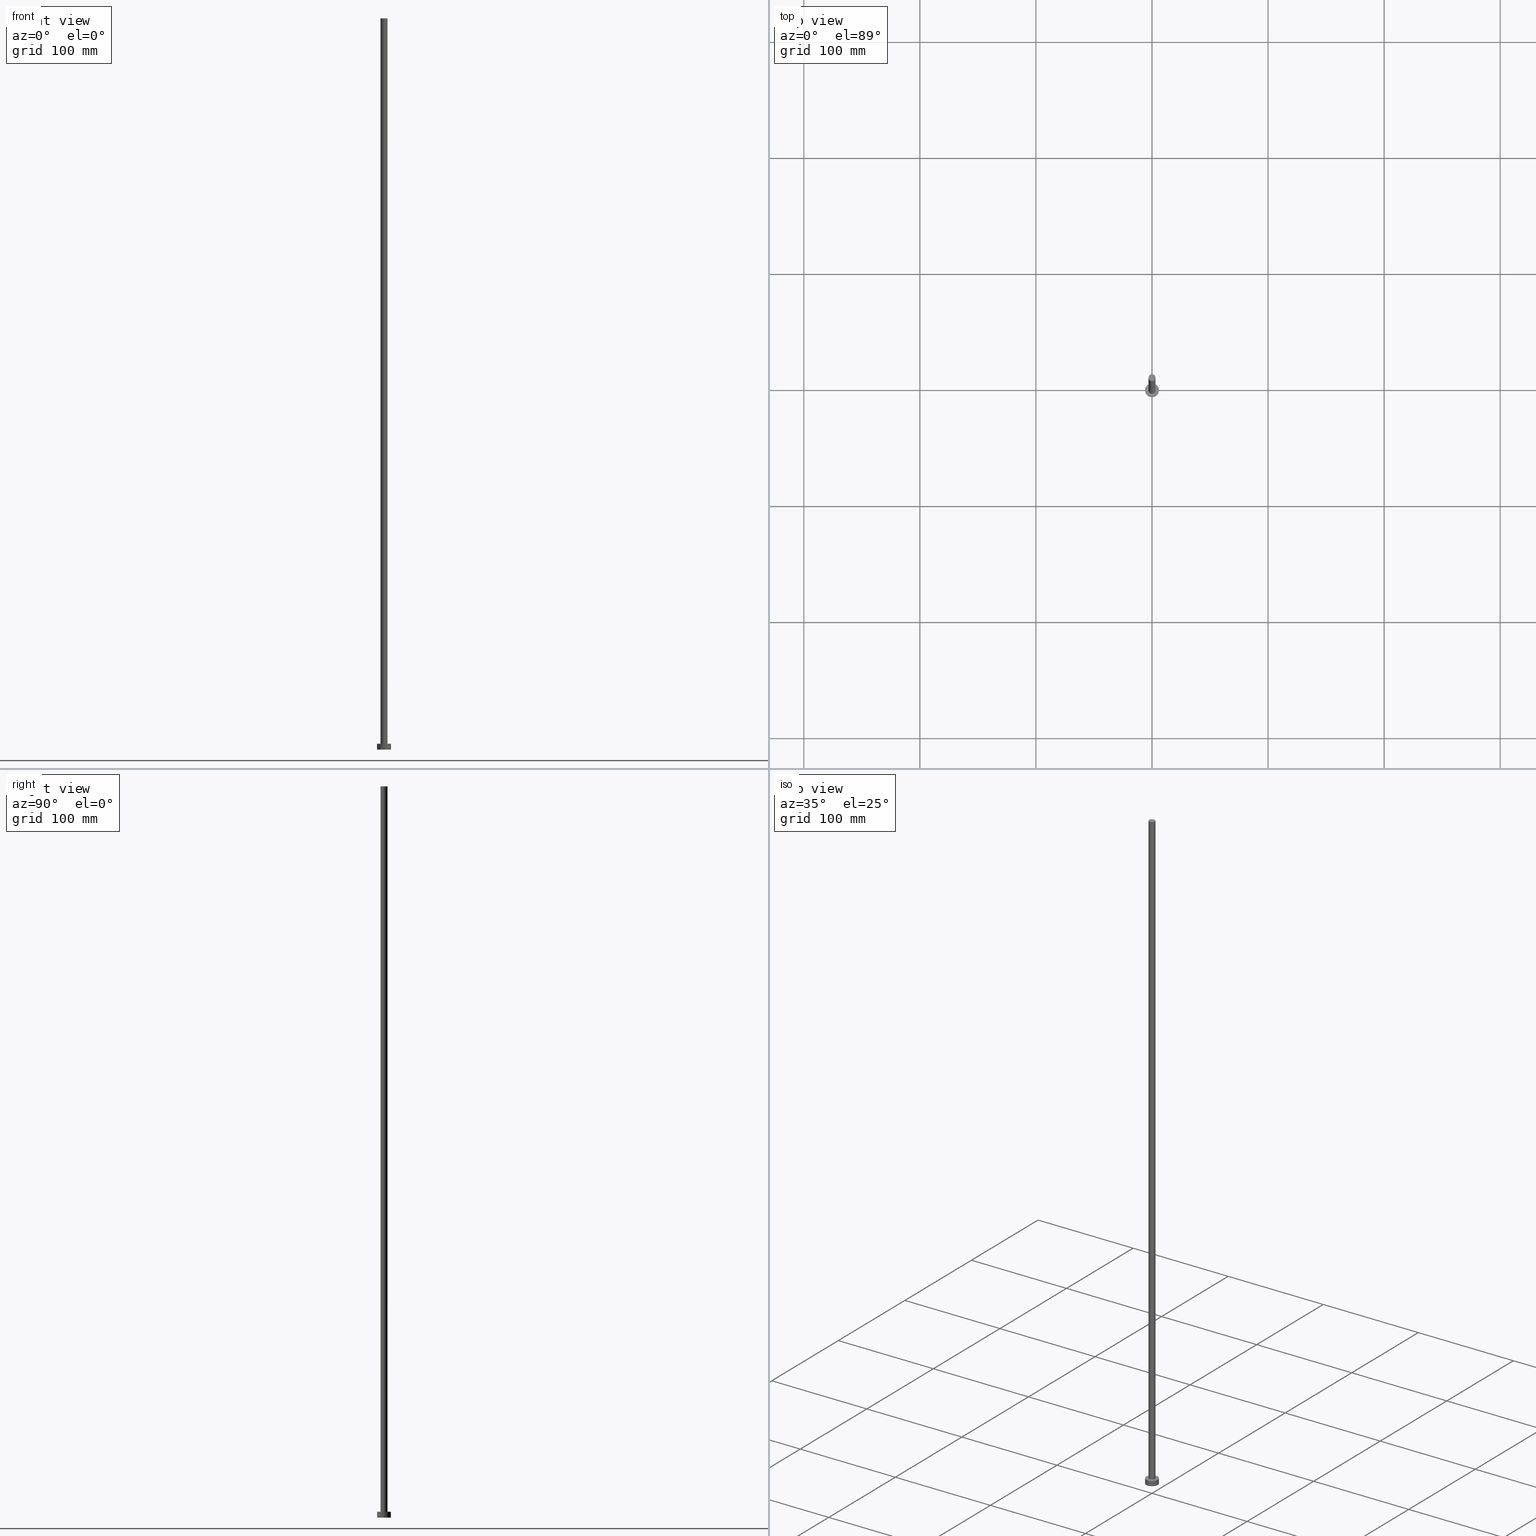
[diagram: canonical four-view strip — front | top / right | iso, engineering-drawing reading convention]
A machine part, canonical four-view strip (front | top / right | iso — engineering-drawing reading convention). The complete STEP part file that produces these views, byte-faithful:
ISO-10303-21;
HEADER;
FILE_DESCRIPTION (( 'STEP AP203' ),
    '1' );
FILE_NAME ('982e.STEP',
    '2026-02-06T12:40:20',
    ( '' ),
    ( '' ),
    'SwSTEP 2.0',
    'SolidWorks 2019',
    '' );
FILE_SCHEMA (( 'CONFIG_CONTROL_DESIGN' ));
ENDSEC;

DATA;
#1 = ORIENTED_EDGE ( 'NONE', *, *, #173, .T. ) ;
#2 = ORIENTED_EDGE ( 'NONE', *, *, #126, .T. ) ;
#3 = DIRECTION ( 'NONE',  ( -0.000000000000000000, -0.000000000000000000, -1.000000000000000000 ) ) ;
#4 = AXIS2_PLACEMENT_3D ( 'NONE', #149, #222, #133 ) ;
#5 = ADVANCED_BREP_SHAPE_REPRESENTATION ( '982e', ( #16, #46 ), #160 ) ;
#6 = APPLICATION_CONTEXT ( 'configuration controlled 3d designs of mechanical parts and assemblies' ) ;
#7 = CC_DESIGN_DATE_AND_TIME_ASSIGNMENT ( #198, #159, ( #52 ) ) ;
#8 = PERSON_AND_ORGANIZATION_ROLE ( 'design_owner' ) ;
#9 = VECTOR ( 'NONE', #183, 1000.000000000000000 ) ;
#10 = SECURITY_CLASSIFICATION_LEVEL ( 'unclassified' ) ;
#11 = PERSON_AND_ORGANIZATION_ROLE ( 'creator' ) ;
#12 = FACE_OUTER_BOUND ( 'NONE', #119, .T. ) ;
#13 = EDGE_CURVE ( 'NONE', #123, #151, #24, .T. ) ;
#14 = LOCAL_TIME ( 13, 40, 20.00000000000000000, #71 ) ;
#15 = DIRECTION ( 'NONE',  ( 0.000000000000000000, 0.000000000000000000, 1.000000000000000000 ) ) ;
#16 = MANIFOLD_SOLID_BREP ( 'P�idat vysunut�m3', #235 ) ;
#17 = CARTESIAN_POINT ( 'NONE',  ( 0.000000000000000000, 0.000000000000000000, 0.000000000000000000 ) ) ;
#18 = APPROVAL_ROLE ( '' ) ;
#19 = FACE_OUTER_BOUND ( 'NONE', #203, .T. ) ;
#20 = FACE_OUTER_BOUND ( 'NONE', #191, .T. ) ;
#21 = AXIS2_PLACEMENT_3D ( 'NONE', #17, #73, #75 ) ;
#22 = ORIENTED_EDGE ( 'NONE', *, *, #102, .T. ) ;
#23 = CARTESIAN_POINT ( 'NONE',  ( -3.000000000000000444, 0.000000000000000000, 630.0000000000000000 ) ) ;
#24 = LINE ( 'NONE', #23, #230 ) ;
#25 = ADVANCED_FACE ( 'NONE', ( #20 ), #169, .T. ) ;
#26 = CC_DESIGN_PERSON_AND_ORGANIZATION_ASSIGNMENT ( #90, #238, ( #158 ) ) ;
#27 = CC_DESIGN_SECURITY_CLASSIFICATION ( #158, ( #233 ) ) ;
#28 = AXIS2_PLACEMENT_3D ( 'NONE', #220, #167, #115 ) ;
#29 = AXIS2_PLACEMENT_3D ( 'NONE', #245, #182, #242 ) ;
#30 =( NAMED_UNIT ( * ) SI_UNIT ( $, .STERADIAN. ) SOLID_ANGLE_UNIT ( ) );
#31 = DESIGN_CONTEXT ( 'detailed design', #118, 'design' ) ;
#32 = COORDINATED_UNIVERSAL_TIME_OFFSET ( 1, 0, .AHEAD. ) ;
#33 = EDGE_CURVE ( 'NONE', #44, #97, #60, .T. ) ;
#34 = LINE ( 'NONE', #219, #193 ) ;
#35 = CC_DESIGN_PERSON_AND_ORGANIZATION_ASSIGNMENT ( #108, #8, ( #74 ) ) ;
#36 = DIRECTION ( 'NONE',  ( 1.000000000000000000, 0.000000000000000000, -0.000000000000000000 ) ) ;
#37 = AXIS2_PLACEMENT_3D ( 'NONE', #163, #79, #165 ) ;
#38 = CARTESIAN_POINT ( 'NONE',  ( 6.000000000000000888, 7.347880794884120722E-16, 5.000000000000000000 ) ) ;
#39 = CARTESIAN_POINT ( 'NONE',  ( -3.000000000000000444, 0.000000000000000000, 630.0000000000000000 ) ) ;
#40 = VERTEX_POINT ( 'NONE', #228 ) ;
#41 = DIRECTION ( 'NONE',  ( 0.000000000000000000, 0.000000000000000000, 1.000000000000000000 ) ) ;
#42 = ORIENTED_EDGE ( 'NONE', *, *, #126, .F. ) ;
#43 = ADVANCED_FACE ( 'NONE', ( #136 ), #98, .T. ) ;
#44 = VERTEX_POINT ( 'NONE', #99 ) ;
#45 = EDGE_LOOP ( 'NONE', ( #229, #1, #153, #81 ) ) ;
#46 = AXIS2_PLACEMENT_3D ( 'NONE', #50, #91, #234 ) ;
#47 = LOCAL_TIME ( 13, 40, 20.00000000000000000, #204 ) ;
#48 = AXIS2_PLACEMENT_3D ( 'NONE', #223, #80, #58 ) ;
#49 = PRODUCT_RELATED_PRODUCT_CATEGORY ( 'detail', '', ( #74 ) ) ;
#50 = CARTESIAN_POINT ( 'NONE',  ( 0.000000000000000000, 0.000000000000000000, 0.000000000000000000 ) ) ;
#51 = CARTESIAN_POINT ( 'NONE',  ( 3.000000000000000444, 3.673940397442060361E-16, 5.000000000000000000 ) ) ;
#52 = PRODUCT_DEFINITION ( 'NEZN�M�', '', #233, #31 ) ;
#53 = LINE ( 'NONE', #55, #63 ) ;
#54 = APPROVAL_PERSON_ORGANIZATION ( #244, #195, #18 ) ;
#55 = CARTESIAN_POINT ( 'NONE',  ( 3.000000000000000444, 3.673940397442060361E-16, 630.0000000000000000 ) ) ;
#56 = DIRECTION ( 'NONE',  ( 0.000000000000000000, 0.000000000000000000, 1.000000000000000000 ) ) ;
#57 = ORIENTED_EDGE ( 'NONE', *, *, #101, .T. ) ;
#58 = DIRECTION ( 'NONE',  ( 1.000000000000000000, 0.000000000000000000, 0.000000000000000000 ) ) ;
#59 = DIRECTION ( 'NONE',  ( -0.000000000000000000, -0.000000000000000000, -1.000000000000000000 ) ) ;
#60 = CIRCLE ( 'NONE', #48, 6.000000000000000888 ) ;
#61 = CYLINDRICAL_SURFACE ( 'NONE', #214, 3.000000000000000444 ) ;
#62 = ORIENTED_EDGE ( 'NONE', *, *, #101, .F. ) ;
#63 = VECTOR ( 'NONE', #239, 1000.000000000000000 ) ;
#64 = AXIS2_PLACEMENT_3D ( 'NONE', #166, #96, #93 ) ;
#65 = EDGE_LOOP ( 'NONE', ( #157, #231, #139, #2 ) ) ;
#66 = PERSON_AND_ORGANIZATION_ROLE ( 'design_supplier' ) ;
#67 = CALENDAR_DATE ( 2026, 6, 2 ) ;
#68 = DATE_AND_TIME ( #237, #225 ) ;
#69 = FACE_OUTER_BOUND ( 'NONE', #65, .T. ) ;
#70 = ORGANIZATION ( 'NEUR�EN�', 'NEUR�EN�', '' ) ;
#71 = COORDINATED_UNIVERSAL_TIME_OFFSET ( 1, 0, .AHEAD. ) ;
#72 = CC_DESIGN_PERSON_AND_ORGANIZATION_ASSIGNMENT ( #236, #66, ( #233 ) ) ;
#73 = DIRECTION ( 'NONE',  ( 0.000000000000000000, 0.000000000000000000, 1.000000000000000000 ) ) ;
#74 = PRODUCT ( '982e', '982e', '', ( #103 ) ) ;
#75 = DIRECTION ( 'NONE',  ( 1.000000000000000000, 0.000000000000000000, 0.000000000000000000 ) ) ;
#76 = CARTESIAN_POINT ( 'NONE',  ( 0.000000000000000000, 0.000000000000000000, 5.000000000000000000 ) ) ;
#77 = SHAPE_DEFINITION_REPRESENTATION ( #246, #5 ) ;
#78 = AXIS2_PLACEMENT_3D ( 'NONE', #185, #184, #249 ) ;
#79 = DIRECTION ( 'NONE',  ( 0.000000000000000000, 0.000000000000000000, 1.000000000000000000 ) ) ;
#80 = DIRECTION ( 'NONE',  ( 0.000000000000000000, 0.000000000000000000, 1.000000000000000000 ) ) ;
#81 = ORIENTED_EDGE ( 'NONE', *, *, #243, .F. ) ;
#82 = EDGE_CURVE ( 'NONE', #97, #44, #194, .T. ) ;
#83 = ORIENTED_EDGE ( 'NONE', *, *, #33, .F. ) ;
#84 = DIRECTION ( 'NONE',  ( -1.000000000000000000, 0.000000000000000000, 0.000000000000000000 ) ) ;
#85 = ORIENTED_EDGE ( 'NONE', *, *, #213, .T. ) ;
#86 = ADVANCED_FACE ( 'NONE', ( #226 ), #61, .T. ) ;
#87 = LOCAL_TIME ( 13, 40, 20.00000000000000000, #32 ) ;
#88 = DATE_AND_TIME ( #89, #14 ) ;
#89 = CALENDAR_DATE ( 2026, 6, 2 ) ;
#90 = PERSON_AND_ORGANIZATION ( #104, #70 ) ;
#91 = DIRECTION ( 'NONE',  ( 0.000000000000000000, 0.000000000000000000, 1.000000000000000000 ) ) ;
#92 = APPROVAL_DATE_TIME ( #142, #255 ) ;
#93 = DIRECTION ( 'NONE',  ( 1.000000000000000000, 0.000000000000000000, 0.000000000000000000 ) ) ;
#94 = CYLINDRICAL_SURFACE ( 'NONE', #4, 3.000000000000000444 ) ;
#95 = CARTESIAN_POINT ( 'NONE',  ( 6.000000000000000888, 7.347880794884120722E-16, 0.000000000000000000 ) ) ;
#96 = DIRECTION ( 'NONE',  ( 0.000000000000000000, 0.000000000000000000, 1.000000000000000000 ) ) ;
#97 = VERTEX_POINT ( 'NONE', #38 ) ;
#98 = CYLINDRICAL_SURFACE ( 'NONE', #207, 6.000000000000000888 ) ;
#99 = CARTESIAN_POINT ( 'NONE',  ( -6.000000000000000888, 0.000000000000000000, 5.000000000000000000 ) ) ;
#100 = CARTESIAN_POINT ( 'NONE',  ( 0.000000000000000000, 0.000000000000000000, 5.000000000000000000 ) ) ;
#101 = EDGE_CURVE ( 'NONE', #121, #151, #106, .T. ) ;
#102 = EDGE_CURVE ( 'NONE', #40, #121, #53, .T. ) ;
#103 = MECHANICAL_CONTEXT ( 'NONE', #6, 'mechanical' ) ;
#104 = PERSON ( 'NEUR�EN�', 'NEUR�EN�', 'NEUR�EN�', ('NEUR�EN�'), ('NEUR�EN�'), ('NEUR�EN�') ) ;
#105 = APPROVAL_ROLE ( '' ) ;
#106 = CIRCLE ( 'NONE', #251, 3.000000000000000444 ) ;
#107 = CIRCLE ( 'NONE', #64, 6.000000000000000888 ) ;
#108 = PERSON_AND_ORGANIZATION ( #104, #70 ) ;
#109 =( NAMED_UNIT ( * ) PLANE_ANGLE_UNIT ( ) SI_UNIT ( $, .RADIAN. ) );
#110 = DIRECTION ( 'NONE',  ( -0.000000000000000000, -0.000000000000000000, -1.000000000000000000 ) ) ;
#111 = CARTESIAN_POINT ( 'NONE',  ( -6.000000000000000888, 0.000000000000000000, 0.000000000000000000 ) ) ;
#112 = ADVANCED_FACE ( 'NONE', ( #69 ), #94, .T. ) ;
#113 = CIRCLE ( 'NONE', #37, 3.000000000000000444 ) ;
#114 = UNCERTAINTY_MEASURE_WITH_UNIT (LENGTH_MEASURE( 1.000000000000000082E-05 ), #215, 'distance_accuracy_value', 'NONE');
#115 = DIRECTION ( 'NONE',  ( 1.000000000000000000, 0.000000000000000000, 0.000000000000000000 ) ) ;
#116 = FACE_OUTER_BOUND ( 'NONE', #137, .T. ) ;
#117 = ORIENTED_EDGE ( 'NONE', *, *, #132, .T. ) ;
#118 = APPLICATION_CONTEXT ( 'configuration controlled 3d designs of mechanical parts and assemblies' ) ;
#119 = EDGE_LOOP ( 'NONE', ( #224, #127 ) ) ;
#120 = APPROVAL_PERSON_ORGANIZATION ( #141, #128, #105 ) ;
#121 = VERTEX_POINT ( 'NONE', #51 ) ;
#122 = CC_DESIGN_PERSON_AND_ORGANIZATION_ASSIGNMENT ( #162, #11, ( #233 ) ) ;
#123 = VERTEX_POINT ( 'NONE', #39 ) ;
#124 = CIRCLE ( 'NONE', #21, 6.000000000000000888 ) ;
#125 = CC_DESIGN_APPROVAL ( #195, ( #158 ) ) ;
#126 = EDGE_CURVE ( 'NONE', #151, #121, #113, .T. ) ;
#127 = ORIENTED_EDGE ( 'NONE', *, *, #232, .F. ) ;
#128 = APPROVAL ( #197, 'NEUR�EN�' ) ;
#129 = APPLICATION_PROTOCOL_DEFINITION ( 'international standard', 'config_control_design', 1994, #118 ) ;
#130 = CIRCLE ( 'NONE', #29, 3.000000000000000444 ) ;
#131 = CARTESIAN_POINT ( 'NONE',  ( -3.000000000000000444, 0.000000000000000000, 5.000000000000000000 ) ) ;
#132 = EDGE_CURVE ( 'NONE', #40, #123, #175, .T. ) ;
#133 = DIRECTION ( 'NONE',  ( -1.000000000000000000, 0.000000000000000000, 0.000000000000000000 ) ) ;
#134 = FACE_BOUND ( 'NONE', #190, .T. ) ;
#135 = VERTEX_POINT ( 'NONE', #95 ) ;
#136 = FACE_OUTER_BOUND ( 'NONE', #45, .T. ) ;
#137 = EDGE_LOOP ( 'NONE', ( #210, #117 ) ) ;
#138 = ORIENTED_EDGE ( 'NONE', *, *, #82, .T. ) ;
#139 = ORIENTED_EDGE ( 'NONE', *, *, #13, .T. ) ;
#140 = APPROVAL_ROLE ( '' ) ;
#141 = PERSON_AND_ORGANIZATION ( #104, #70 ) ;
#142 = DATE_AND_TIME ( #67, #216 ) ;
#143 = APPROVAL_DATE_TIME ( #88, #128 ) ;
#144 = DIRECTION ( 'NONE',  ( 0.000000000000000000, 0.000000000000000000, 1.000000000000000000 ) ) ;
#145 = EDGE_CURVE ( 'NONE', #123, #40, #130, .T. ) ;
#146 = LINE ( 'NONE', #148, #9 ) ;
#147 = DATE_AND_TIME ( #253, #47 ) ;
#148 = CARTESIAN_POINT ( 'NONE',  ( -6.000000000000000888, 0.000000000000000000, 5.000000000000000000 ) ) ;
#149 = CARTESIAN_POINT ( 'NONE',  ( 0.000000000000000000, 0.000000000000000000, 630.0000000000000000 ) ) ;
#150 = CARTESIAN_POINT ( 'NONE',  ( 0.000000000000000000, 0.000000000000000000, 630.0000000000000000 ) ) ;
#151 = VERTEX_POINT ( 'NONE', #131 ) ;
#152 = DIRECTION ( 'NONE',  ( -0.000000000000000000, -0.000000000000000000, -1.000000000000000000 ) ) ;
#153 = ORIENTED_EDGE ( 'NONE', *, *, #232, .T. ) ;
#154 = APPROVAL_PERSON_ORGANIZATION ( #164, #255, #140 ) ;
#155 = ORIENTED_EDGE ( 'NONE', *, *, #243, .T. ) ;
#156 = ADVANCED_FACE ( 'NONE', ( #116 ), #200, .T. ) ;
#157 = ORIENTED_EDGE ( 'NONE', *, *, #102, .F. ) ;
#158 = SECURITY_CLASSIFICATION ( '', '', #10 ) ;
#159 = DATE_TIME_ROLE ( 'creation_date' ) ;
#160 =( GEOMETRIC_REPRESENTATION_CONTEXT ( 3 ) GLOBAL_UNCERTAINTY_ASSIGNED_CONTEXT ( ( #114 ) ) GLOBAL_UNIT_ASSIGNED_CONTEXT ( ( #215, #109, #30 ) ) REPRESENTATION_CONTEXT ( 'NONE', 'WORKASPACE' ) );
#161 = COORDINATED_UNIVERSAL_TIME_OFFSET ( 1, 0, .AHEAD. ) ;
#162 = PERSON_AND_ORGANIZATION ( #104, #70 ) ;
#163 = CARTESIAN_POINT ( 'NONE',  ( 0.000000000000000000, 0.000000000000000000, 5.000000000000000000 ) ) ;
#164 = PERSON_AND_ORGANIZATION ( #104, #70 ) ;
#165 = DIRECTION ( 'NONE',  ( 1.000000000000000000, 0.000000000000000000, 0.000000000000000000 ) ) ;
#166 = CARTESIAN_POINT ( 'NONE',  ( 0.000000000000000000, 0.000000000000000000, 0.000000000000000000 ) ) ;
#167 = DIRECTION ( 'NONE',  ( 0.000000000000000000, 0.000000000000000000, 1.000000000000000000 ) ) ;
#168 = DIRECTION ( 'NONE',  ( 1.000000000000000000, 0.000000000000000000, 0.000000000000000000 ) ) ;
#169 = CYLINDRICAL_SURFACE ( 'NONE', #212, 6.000000000000000888 ) ;
#170 = AXIS2_PLACEMENT_3D ( 'NONE', #202, #56, #36 ) ;
#171 = DIRECTION ( 'NONE',  ( -1.000000000000000000, 0.000000000000000000, 0.000000000000000000 ) ) ;
#172 = CARTESIAN_POINT ( 'NONE',  ( 0.000000000000000000, 0.000000000000000000, 5.000000000000000000 ) ) ;
#173 = EDGE_CURVE ( 'NONE', #97, #135, #34, .T. ) ;
#174 = CARTESIAN_POINT ( 'NONE',  ( 0.000000000000000000, 0.000000000000000000, 630.0000000000000000 ) ) ;
#175 = CIRCLE ( 'NONE', #28, 3.000000000000000444 ) ;
#176 = ADVANCED_FACE ( 'NONE', ( #134, #19 ), #221, .T. ) ;
#177 = PERSON_AND_ORGANIZATION ( #104, #70 ) ;
#178 = AXIS2_PLACEMENT_3D ( 'NONE', #150, #144, #248 ) ;
#179 = APPROVAL_STATUS ( 'not_yet_approved' ) ;
#180 = APPROVAL_DATE_TIME ( #147, #195 ) ;
#181 = COORDINATED_UNIVERSAL_TIME_OFFSET ( 1, 0, .AHEAD. ) ;
#182 = DIRECTION ( 'NONE',  ( 0.000000000000000000, 0.000000000000000000, 1.000000000000000000 ) ) ;
#183 = DIRECTION ( 'NONE',  ( -0.000000000000000000, -0.000000000000000000, -1.000000000000000000 ) ) ;
#184 = DIRECTION ( 'NONE',  ( 0.000000000000000000, 0.000000000000000000, 1.000000000000000000 ) ) ;
#185 = CARTESIAN_POINT ( 'NONE',  ( 0.000000000000000000, 0.000000000000000000, 5.000000000000000000 ) ) ;
#186 = CC_DESIGN_APPROVAL ( #255, ( #233 ) ) ;
#187 = CC_DESIGN_APPROVAL ( #128, ( #52 ) ) ;
#188 = DIRECTION ( 'NONE',  ( 1.000000000000000000, 0.000000000000000000, 0.000000000000000000 ) ) ;
#189 = ADVANCED_FACE ( 'NONE', ( #12 ), #201, .F. ) ;
#190 = EDGE_LOOP ( 'NONE', ( #42, #62 ) ) ;
#191 = EDGE_LOOP ( 'NONE', ( #211, #83, #155, #85 ) ) ;
#192 = VERTEX_POINT ( 'NONE', #111 ) ;
#193 = VECTOR ( 'NONE', #110, 1000.000000000000000 ) ;
#194 = CIRCLE ( 'NONE', #240, 6.000000000000000888 ) ;
#195 = APPROVAL ( #247, 'NEUR�EN�' ) ;
#196 = ORIENTED_EDGE ( 'NONE', *, *, #33, .T. ) ;
#197 = APPROVAL_STATUS ( 'not_yet_approved' ) ;
#198 = DATE_AND_TIME ( #218, #87 ) ;
#199 = APPLICATION_PROTOCOL_DEFINITION ( 'international standard', 'config_control_design', 1994, #6 ) ;
#200 = PLANE ( 'NONE',  #178 ) ;
#201 = PLANE ( 'NONE',  #170 ) ;
#202 = CARTESIAN_POINT ( 'NONE',  ( 0.000000000000000000, 0.000000000000000000, 0.000000000000000000 ) ) ;
#203 = EDGE_LOOP ( 'NONE', ( #196, #138 ) ) ;
#204 = COORDINATED_UNIVERSAL_TIME_OFFSET ( 1, 0, .AHEAD. ) ;
#205 = EDGE_LOOP ( 'NONE', ( #250, #22, #57, #209 ) ) ;
#206 = DIRECTION ( 'NONE',  ( -1.000000000000000000, 0.000000000000000000, 0.000000000000000000 ) ) ;
#207 = AXIS2_PLACEMENT_3D ( 'NONE', #100, #59, #206 ) ;
#208 = CC_DESIGN_PERSON_AND_ORGANIZATION_ASSIGNMENT ( #177, #241, ( #52 ) ) ;
#209 = ORIENTED_EDGE ( 'NONE', *, *, #13, .F. ) ;
#210 = ORIENTED_EDGE ( 'NONE', *, *, #145, .T. ) ;
#211 = ORIENTED_EDGE ( 'NONE', *, *, #173, .F. ) ;
#212 = AXIS2_PLACEMENT_3D ( 'NONE', #252, #254, #171 ) ;
#213 = EDGE_CURVE ( 'NONE', #192, #135, #107, .T. ) ;
#214 = AXIS2_PLACEMENT_3D ( 'NONE', #174, #3, #84 ) ;
#215 =( LENGTH_UNIT ( ) NAMED_UNIT ( * ) SI_UNIT ( .MILLI., .METRE. ) );
#216 = LOCAL_TIME ( 13, 40, 20.00000000000000000, #181 ) ;
#217 = DATE_TIME_ROLE ( 'classification_date' ) ;
#218 = CALENDAR_DATE ( 2026, 6, 2 ) ;
#219 = CARTESIAN_POINT ( 'NONE',  ( 6.000000000000000888, 7.347880794884120722E-16, 5.000000000000000000 ) ) ;
#220 = CARTESIAN_POINT ( 'NONE',  ( 0.000000000000000000, 0.000000000000000000, 630.0000000000000000 ) ) ;
#221 = PLANE ( 'NONE',  #78 ) ;
#222 = DIRECTION ( 'NONE',  ( -0.000000000000000000, -0.000000000000000000, -1.000000000000000000 ) ) ;
#223 = CARTESIAN_POINT ( 'NONE',  ( 0.000000000000000000, 0.000000000000000000, 5.000000000000000000 ) ) ;
#224 = ORIENTED_EDGE ( 'NONE', *, *, #213, .F. ) ;
#225 = LOCAL_TIME ( 13, 40, 20.00000000000000000, #161 ) ;
#226 = FACE_OUTER_BOUND ( 'NONE', #205, .T. ) ;
#227 = CC_DESIGN_DATE_AND_TIME_ASSIGNMENT ( #68, #217, ( #158 ) ) ;
#228 = CARTESIAN_POINT ( 'NONE',  ( 3.000000000000000444, 3.673940397442060361E-16, 630.0000000000000000 ) ) ;
#229 = ORIENTED_EDGE ( 'NONE', *, *, #82, .F. ) ;
#230 = VECTOR ( 'NONE', #152, 1000.000000000000000 ) ;
#231 = ORIENTED_EDGE ( 'NONE', *, *, #145, .F. ) ;
#232 = EDGE_CURVE ( 'NONE', #135, #192, #124, .T. ) ;
#233 = PRODUCT_DEFINITION_FORMATION_WITH_SPECIFIED_SOURCE ( 'LIBOVOLN�', '', #74, .NOT_KNOWN. ) ;
#234 = DIRECTION ( 'NONE',  ( 1.000000000000000000, 0.000000000000000000, 0.000000000000000000 ) ) ;
#235 = CLOSED_SHELL ( 'NONE', ( #86, #43, #25, #176, #189, #112, #156 ) ) ;
#236 = PERSON_AND_ORGANIZATION ( #104, #70 ) ;
#237 = CALENDAR_DATE ( 2026, 6, 2 ) ;
#238 = PERSON_AND_ORGANIZATION_ROLE ( 'classification_officer' ) ;
#239 = DIRECTION ( 'NONE',  ( -0.000000000000000000, -0.000000000000000000, -1.000000000000000000 ) ) ;
#240 = AXIS2_PLACEMENT_3D ( 'NONE', #172, #41, #188 ) ;
#241 = PERSON_AND_ORGANIZATION_ROLE ( 'creator' ) ;
#242 = DIRECTION ( 'NONE',  ( 1.000000000000000000, 0.000000000000000000, 0.000000000000000000 ) ) ;
#243 = EDGE_CURVE ( 'NONE', #44, #192, #146, .T. ) ;
#244 = PERSON_AND_ORGANIZATION ( #104, #70 ) ;
#245 = CARTESIAN_POINT ( 'NONE',  ( 0.000000000000000000, 0.000000000000000000, 630.0000000000000000 ) ) ;
#246 = PRODUCT_DEFINITION_SHAPE ( 'NONE', 'NONE',  #52 ) ;
#247 = APPROVAL_STATUS ( 'not_yet_approved' ) ;
#248 = DIRECTION ( 'NONE',  ( 1.000000000000000000, 0.000000000000000000, -0.000000000000000000 ) ) ;
#249 = DIRECTION ( 'NONE',  ( 1.000000000000000000, 0.000000000000000000, -0.000000000000000000 ) ) ;
#250 = ORIENTED_EDGE ( 'NONE', *, *, #132, .F. ) ;
#251 = AXIS2_PLACEMENT_3D ( 'NONE', #76, #15, #168 ) ;
#252 = CARTESIAN_POINT ( 'NONE',  ( 0.000000000000000000, 0.000000000000000000, 5.000000000000000000 ) ) ;
#253 = CALENDAR_DATE ( 2026, 6, 2 ) ;
#254 = DIRECTION ( 'NONE',  ( -0.000000000000000000, -0.000000000000000000, -1.000000000000000000 ) ) ;
#255 = APPROVAL ( #179, 'NEUR�EN�' ) ;
ENDSEC;
END-ISO-10303-21;
